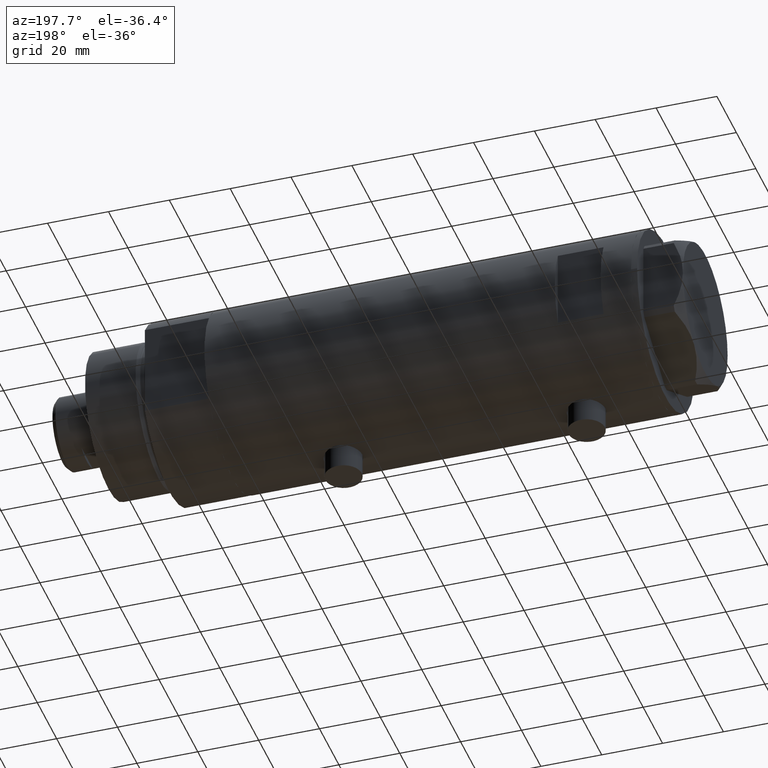
[diagram: clean part render]
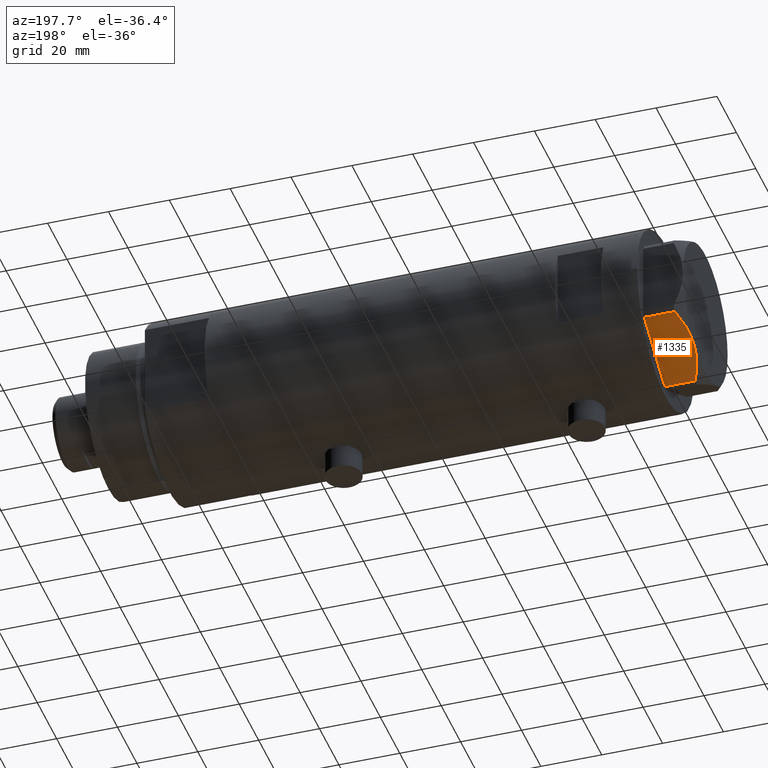
[diagram: same view with one face highlighted and labeled with its STEP entity id]
A machine part, auxiliary view. The second image highlights one B-rep face of the part: STEP entity #1335.
In plain terms, the highlighted planar face has unit normal (0, -0.5, 0.866).
Its self-contained STEP definition (entity closure, byte-faithful):
#116 = CARTESIAN_POINT ( 'NONE',  ( 7.884645426989624895, 22.00591022298558741, 12.70765172847692526 ) ) ;
#119 = DIRECTION ( 'NONE',  ( 0.000000000000000000, 0.000000000000000000, 1.000000000000000000 ) ) ;
#160 = CARTESIAN_POINT ( 'NONE',  ( 3.925137811030053214, 24.29193301091819279, 11.39727285399137813 ) ) ;
#181 = CARTESIAN_POINT ( 'NONE',  ( 13.34348161667004362, 18.85424967941157703, 12.90784227772834392 ) ) ;
#338 = CARTESIAN_POINT ( 'NONE',  ( 22.99999999999981171, 13.27905619136164184, 0.000000000000000000 ) ) ;
#648 = CARTESIAN_POINT ( 'NONE',  ( 11.49999999999990408, 19.91858428704219364, 13.00000000000000000 ) ) ;
#727 = CARTESIAN_POINT ( 'NONE',  ( 22.99999999999981171, 13.27905619136164184, 13.00000000000000000 ) ) ;
#746 = VERTEX_POINT ( 'NONE', #904 ) ;
#777 = EDGE_LOOP ( 'NONE', ( #2143, #2977, #3551, #995, #1224 ) ) ;
#904 = CARTESIAN_POINT ( 'NONE',  ( 0.9699484522385886098, 25.99811238272273783, 0.000000000000000000 ) ) ;
#974 = VECTOR ( 'NONE', #119, 1000.000000000000000 ) ;
#995 = ORIENTED_EDGE ( 'NONE', *, *, #1821, .T. ) ;
#1224 = ORIENTED_EDGE ( 'NONE', *, *, #2106, .F. ) ;
#1235 = CARTESIAN_POINT ( 'NONE',  ( 16.05322244309624224, 17.28978008384030929, 12.42689993760370015 ) ) ;
#1335 = ADVANCED_FACE ( 'NONE', ( #3107 ), #2403, .F. ) ;
#1346 = CARTESIAN_POINT ( 'NONE',  ( 11.49999999999990408, 19.91858428704219364, 13.00000000000000000 ) ) ;
#1367 = EDGE_CURVE ( 'NONE', #2269, #746, #2465, .T. ) ;
#1431 = DIRECTION ( 'NONE',  ( -0.4999999999999948930, -0.8660254037844415942, 0.000000000000000000 ) ) ;
#1557 = EDGE_CURVE ( 'NONE', #4011, #2829, #3130, .T. ) ;
#1658 = CARTESIAN_POINT ( 'NONE',  ( 11.95865151389051384, 19.65378171203322921, 13.00000000000000355 ) ) ;
#1821 = EDGE_CURVE ( 'NONE', #746, #2437, #3622, .T. ) ;
#1842 = CARTESIAN_POINT ( 'NONE',  ( 9.678244919010090541, 20.97037507344921892, 13.00000000000000888 ) ) ;
#1989 = CARTESIAN_POINT ( 'NONE',  ( 22.03005154776139207, 13.83905619136154463, 9.983800287807527596 ) ) ;
#2106 = EDGE_CURVE ( 'NONE', #2829, #2437, #3069, .T. ) ;
#2143 = ORIENTED_EDGE ( 'NONE', *, *, #1557, .F. ) ;
#2151 = DIRECTION ( 'NONE',  ( -0.8660254037844415942, 0.4999999999999949485, 0.000000000000000000 ) ) ;
#2210 = CARTESIAN_POINT ( 'NONE',  ( 2.640413878806743053, 25.03366871902166935, 10.84420102443836598 ) ) ;
#2253 = LINE ( 'NONE', #4307, #3841 ) ;
#2269 = VERTEX_POINT ( 'NONE', #4015 ) ;
#2403 = PLANE ( 'NONE',  #4266 ) ;
#2437 = VERTEX_POINT ( 'NONE', #3168 ) ;
#2465 = LINE ( 'NONE', #338, #3549 ) ;
#2558 = CARTESIAN_POINT ( 'NONE',  ( 0.9699484522385838359, 25.99811238272274139, 9.983800287807635954 ) ) ;
#2633 = CARTESIAN_POINT ( 'NONE',  ( 22.03005154776139207, 13.83905619136154463, 9.983800287807527596 ) ) ;
#2671 = DIRECTION ( 'NONE',  ( 0.000000000000000000, 0.000000000000000000, -1.000000000000000000 ) ) ;
#2706 = CARTESIAN_POINT ( 'NONE',  ( 12.41906678023027055, 19.38796083407295612, 12.98168640760940562 ) ) ;
#2829 = VERTEX_POINT ( 'NONE', #1346 ) ;
#2881 = CARTESIAN_POINT ( 'NONE',  ( 4.357207709416042185, 24.04247733877631887, 11.57055225522968378 ) ) ;
#2977 = ORIENTED_EDGE ( 'NONE', *, *, #4316, .T. ) ;
#3030 = CARTESIAN_POINT ( 'NONE',  ( 18.67981377008996802, 15.77331687414936567, 11.62937486882604965 ) ) ;
#3069 = B_SPLINE_CURVE_WITH_KNOTS ( 'NONE', 3,
 ( #3871, #1842, #116, #3247, #4241, #2881, #160, #2210, #3541, #2558 ),
 .UNSPECIFIED., .F., .F.,
 ( 4, 2, 2, 2, 4 ),
 ( 0.01376519981810293836, 0.01998941321701560442, 0.02154546656674377267, 0.02310151991647194092, 0.02621362661592828089 ),
 .UNSPECIFIED. ) ;
#3107 = FACE_OUTER_BOUND ( 'NONE', #777, .T. ) ;
#3130 = B_SPLINE_CURVE_WITH_KNOTS ( 'NONE', 3,
 ( #1989, #4433, #3030, #1235, #3756, #4389, #181, #2706, #1658, #648 ),
 .UNSPECIFIED., .F., .F.,
 ( 4, 2, 2, 2, 4 ),
 ( 0.001228959670438484414, 0.007497079744270713011, 0.01063113978118682308, 0.01219816979964488159, 0.01376519981810293836 ),
 .UNSPECIFIED. ) ;
#3168 = CARTESIAN_POINT ( 'NONE',  ( 0.9699484522385838359, 25.99811238272274139, 9.983800287807635954 ) ) ;
#3247 = CARTESIAN_POINT ( 'NONE',  ( 5.671686373602804920, 23.28356272816407113, 12.04068176582928018 ) ) ;
#3541 = CARTESIAN_POINT ( 'NONE',  ( 1.799196345396830266, 25.51934588838290452, 10.43131750950938930 ) ) ;
#3549 = VECTOR ( 'NONE', #2151, 999.9999999999998863 ) ;
#3551 = ORIENTED_EDGE ( 'NONE', *, *, #1367, .T. ) ;
#3622 = LINE ( 'NONE', #3973, #974 ) ;
#3756 = CARTESIAN_POINT ( 'NONE',  ( 15.16323225988329604, 17.80361615569442790, 12.63731396715686728 ) ) ;
#3769 = DIRECTION ( 'NONE',  ( 0.8660254037844415942, -0.4999999999999948930, 0.000000000000000000 ) ) ;
#3841 = VECTOR ( 'NONE', #2671, 1000.000000000000000 ) ;
#3871 = CARTESIAN_POINT ( 'NONE',  ( 11.49999999999990408, 19.91858428704219364, 13.00000000000000000 ) ) ;
#3973 = CARTESIAN_POINT ( 'NONE',  ( 0.9699484522385886098, 25.99811238272273783, 13.00000000000000000 ) ) ;
#4011 = VERTEX_POINT ( 'NONE', #2633 ) ;
#4015 = CARTESIAN_POINT ( 'NONE',  ( 22.03005154776124996, 13.83905619136162635, 0.000000000000000000 ) ) ;
#4241 = CARTESIAN_POINT ( 'NONE',  ( 5.229981517798068857, 23.53858114556529912, 11.89212886775839451 ) ) ;
#4266 = AXIS2_PLACEMENT_3D ( 'NONE', #727, #1431, #3769 ) ;
#4307 = CARTESIAN_POINT ( 'NONE',  ( 22.03005154776124996, 13.83905619136162635, 13.00000000000000000 ) ) ;
#4316 = EDGE_CURVE ( 'NONE', #4011, #2269, #2253, .T. ) ;
#4389 = CARTESIAN_POINT ( 'NONE',  ( 13.80210138309696788, 18.58946543380931260, 12.85271263895571181 ) ) ;
#4433 = CARTESIAN_POINT ( 'NONE',  ( 20.37350567916420374, 14.79546339452108228, 10.87778242614341728 ) ) ;